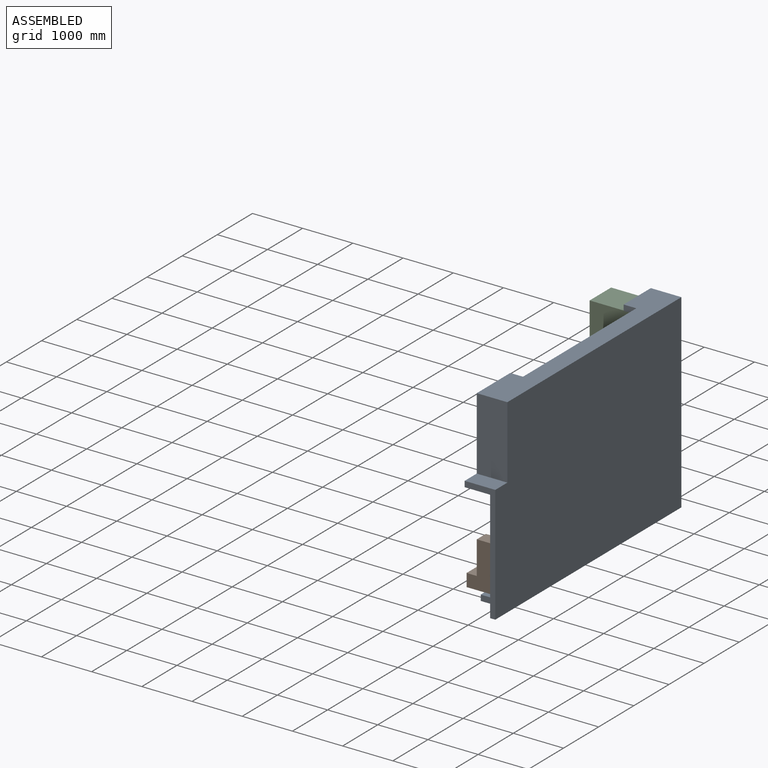
[diagram: assembled view]
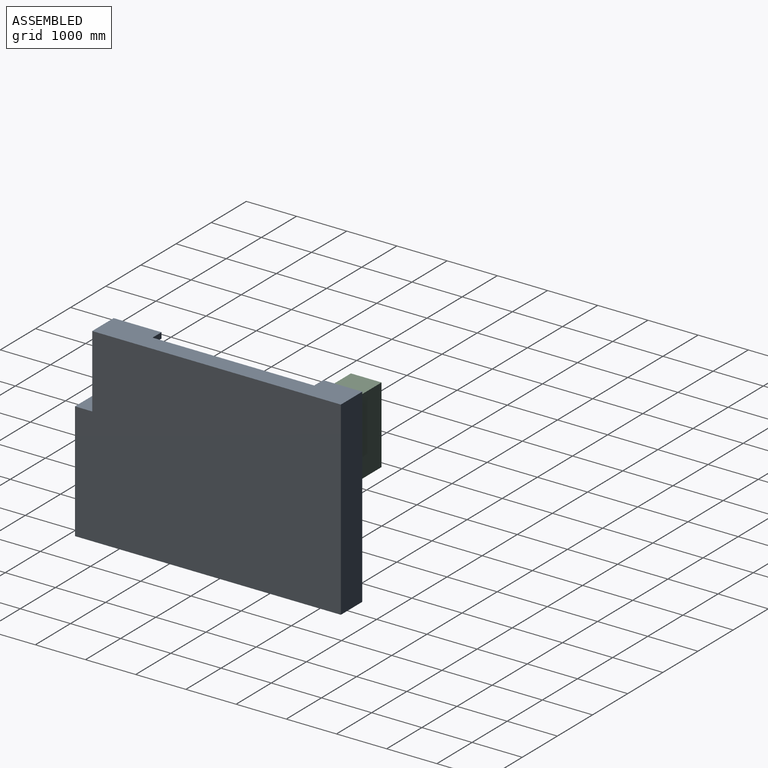
[diagram: assembled view, second angle]
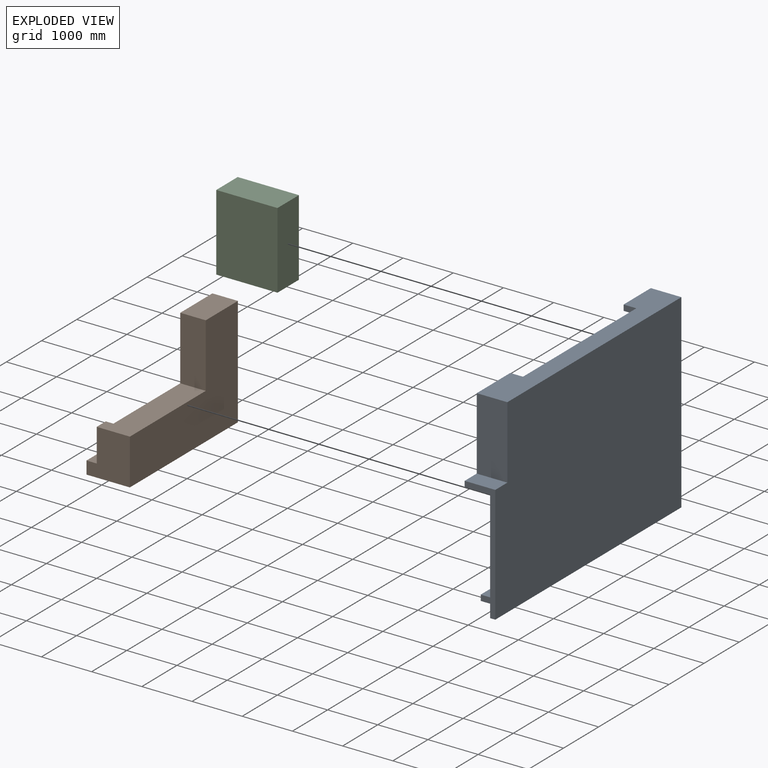
[diagram: exploded view]
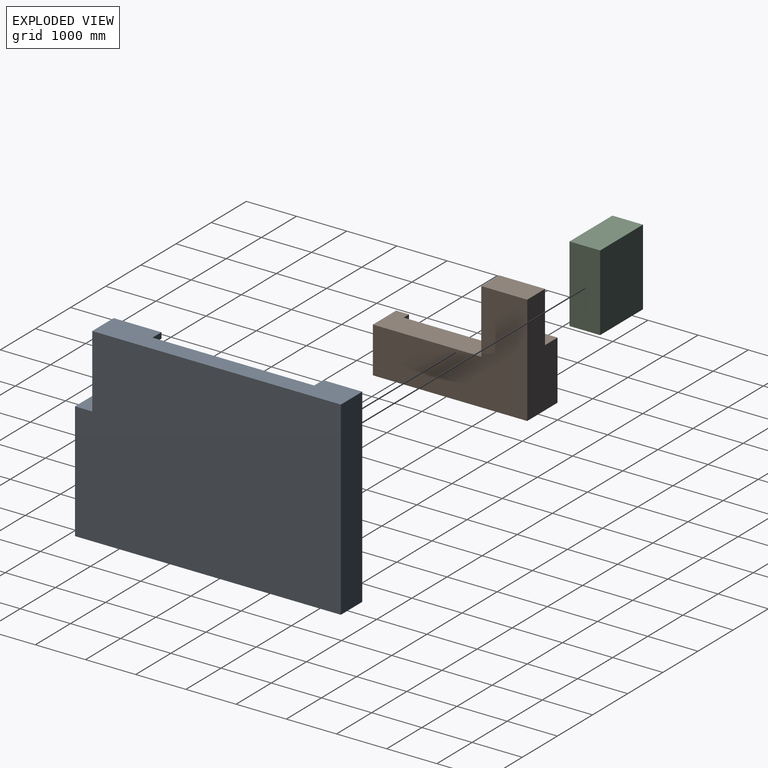
[diagram: exploded view, second angle]
ASSEMBLY  parts=3 mates=4
PART A: 19 faces, bbox 609.6x5295.9x3784.6 mm
  f0: plane 4838.7x3784.6mm, normal (-1,0,0), area 1048062.4mm2, adj f1,f2,f3,f4,f5,f11,f12,f16
  f1: plane 4724.4x508mm, normal (0,0,-1), area 1580642mm2, adj f0,f10,f11,f13,f14,f16,f17,f18
  f2: plane 508x114.3mm, normal (0,-1,0), area 58064.4mm2, adj f0,f3,f12,f14
  f3: plane 5295.9x609.6mm, normal (0,0,-1), area 2996123mm2, adj f0,f2,f4,f8,f14,f15
  f4: plane 3784.6x609.6mm, normal (0,1,0), area 2307092.2mm2, adj f0,f3,f5,f15
  f5: plane 4953x609.6mm, normal (0,0,1), area 2199995.6mm2, adj f0,f4,f6,f13,f15,f16,f17,f18
  f6: plane 1447.8x609.6mm, normal (0,-1,0), area 882578.9mm2, adj f5,f7,f13,f15
  f7: plane 609.6x342.9mm, normal (0,0,1), area 209031.8mm2, adj f6,f8,f13,f15
  f8: plane 2336.8x609.6mm, normal (0,-1,0), area 295483.3mm2, adj f3,f7,f9,f13,f14,f15
  f9: plane 508x457.2mm, normal (0,0,-1), area 232257.6mm2, adj f8,f10,f13,f14
  f10: plane 1447.8x508mm, normal (0,1,0), area 735482.4mm2, adj f1,f9,f13,f14
  f11: plane 3556x508mm, normal (0,-1,0), area 1806448mm2, adj f0,f1,f12,f14
  f12: plane 4724.4x508mm, normal (0,0,1), area 2399995.2mm2, adj f0,f2,f11,f14
  f13: plane 1562.1x1295.4mm, normal (-1,0,0), area 313547.8mm2, adj f1,f5,f6,f7,f8,f9,f10,f18
  f14: plane 5181.6x3670.3mm, normal (-1,0,0), area 17816093.4mm2, adj f1,f2,f3,f8,f9,f10,f11,f12
  f15: plane 5295.9x3784.6mm, normal (1,0,0), area 19546412.5mm2, adj f3,f4,f5,f6,f7,f8
  f16: plane 254x114.3mm, normal (0,-1,0), area 29032.2mm2, adj f0,f1,f5,f17
  f17: plane 3225.8x114.3mm, normal (-1,0,0), area 368708.9mm2, adj f1,f5,f16,f18
  f18: plane 254x114.3mm, normal (0,1,0), area 29032.2mm2, adj f1,f5,f13,f17
PART B: 14 faces, bbox 863.6x3073.4x2184.4 mm
  f0: plane 2816.46x1930.4mm, normal (-1,0,0), area 2788051.7mm2, adj f1,f2,f3,f4,f8,f9,f10,f13
  f1: plane 2184.4x863.6mm, normal (0,-1,0), area 1526511.8mm2, adj f0,f2,f5,f9,f11,f12
  f2: plane 914.4x508mm, normal (0,0,-1), area 464515.2mm2, adj f0,f1,f3,f5
  f3: plane 1270x508mm, normal (0,1,0), area 645160mm2, adj f0,f2,f4,f5
  f4: plane 2159x660.4mm, normal (0,0,-1), area 1135930.1mm2, adj f0,f3,f5,f6,f7,f8
  f5: plane 3073.4x2184.4mm, normal (1,0,0), area 3971605mm2, adj f1,f2,f3,f4,f7,f12
  f6: plane 660.4x256.94mm, normal (-1,0,0), area 169685.2mm2, adj f4,f7,f8,f13
  f7: plane 914.4x863.6mm, normal (0,1,0), area 655482.6mm2, adj f4,f5,f6,f11,f12,f13
  f8: plane 660.4x152.4mm, normal (0,-1,0), area 100645mm2, adj f0,f4,f6,f13
  f9: plane 355.6x254mm, normal (0,0,-1), area 90322.4mm2, adj f0,f1,f10,f11
  f10: plane 918.21x355.6mm, normal (0,1,0), area 326514.2mm2, adj f0,f9,f11,f13
  f11: plane 3073.4x1172.21mm, normal (-1,0,0), area 1013868mm2, adj f1,f7,f9,f10,f12,f13
  f12: plane 3073.4x863.6mm, normal (0,0,1), area 2654188.2mm2, adj f1,f5,f7,f11
  f13: plane 2819.4x355.6mm, normal (0,0,-1), area 963420.5mm2, adj f0,f6,f7,f8,f10,f11
PART C: 6 faces, bbox 1219.2x1524x609.6 mm
  f0: plane 1219.2x609.6mm, normal (0,1,0), area 743224.3mm2, adj f1,f3,f4,f5
  f1: plane 1524x1219.2mm, normal (0,0,1), area 1858060.8mm2, adj f0,f2,f4,f5
  f2: plane 1219.2x609.6mm, normal (0,-1,0), area 743224.3mm2, adj f1,f3,f4,f5
  f3: plane 1524x1219.2mm, normal (0,0,-1), area 1858060.8mm2, adj f0,f2,f4,f5
  f4: plane 1524x609.6mm, normal (-1,0,0), area 929030.4mm2, adj f0,f1,f2,f3
  f5: plane 1524x609.6mm, normal (1,0,0), area 929030.4mm2, adj f0,f1,f2,f3
PLACE A t=(-3734.3,838.06,-1612.54)mm fixed
PLACE B rot(axis=(-1,0,0),180deg) t=(-3734.3,-5899.7,-2888.99)mm
PLACE C rot(axis=(1,0,0),90deg) t=(-3734.3,712.56,99.66)mm
MATE planar C.f3 <-> A.f11  axis (0,1,0) through (-4343.9,429.3,1159.66)mm
MATE planar B.f5 <-> A.f14  axis (1,0,0) through (-3734.3,-2337.78,-835.98)mm
MATE planar C.f5 <-> A.f14  axis (1,0,0) through (-3734.3,124.5,1159.66)mm
MATE planar B.f12 <-> A.f12  axis (0,0,-1) through (-4166.1,-2653.42,-1612.54)mm
